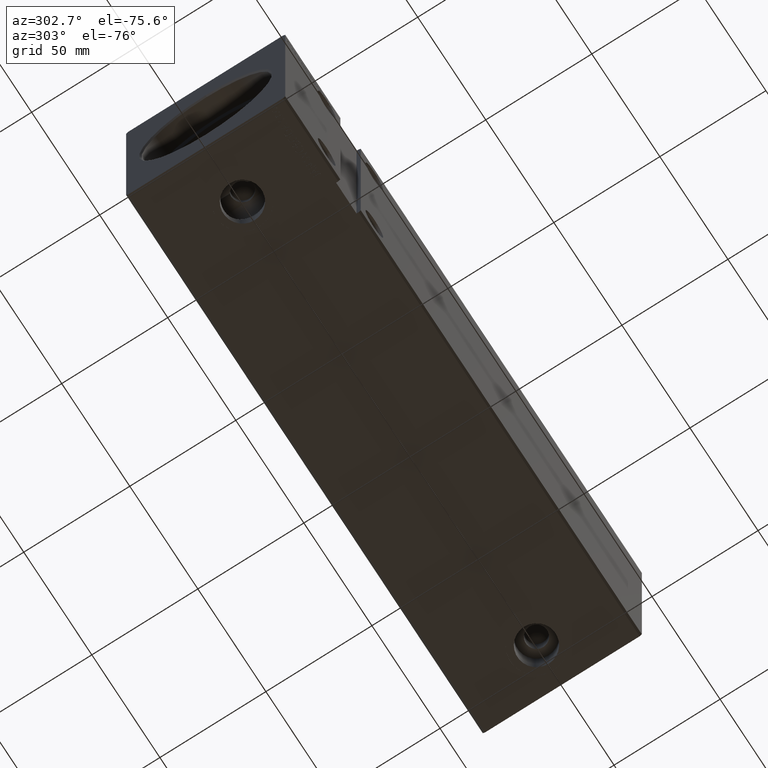
[diagram: clean part render]
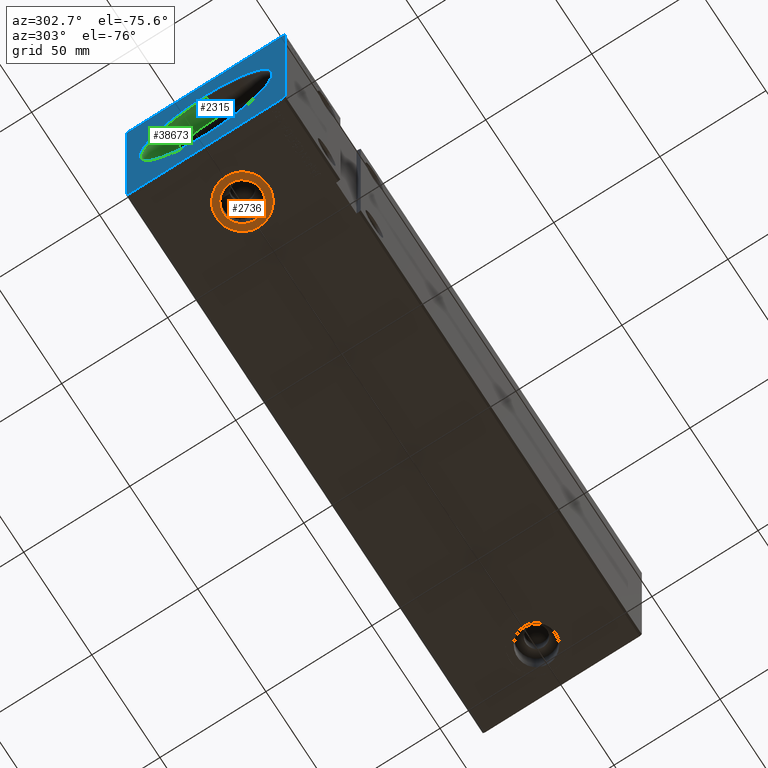
[diagram: same view with three faces highlighted in distinct colors, each labeled with its STEP entity id]
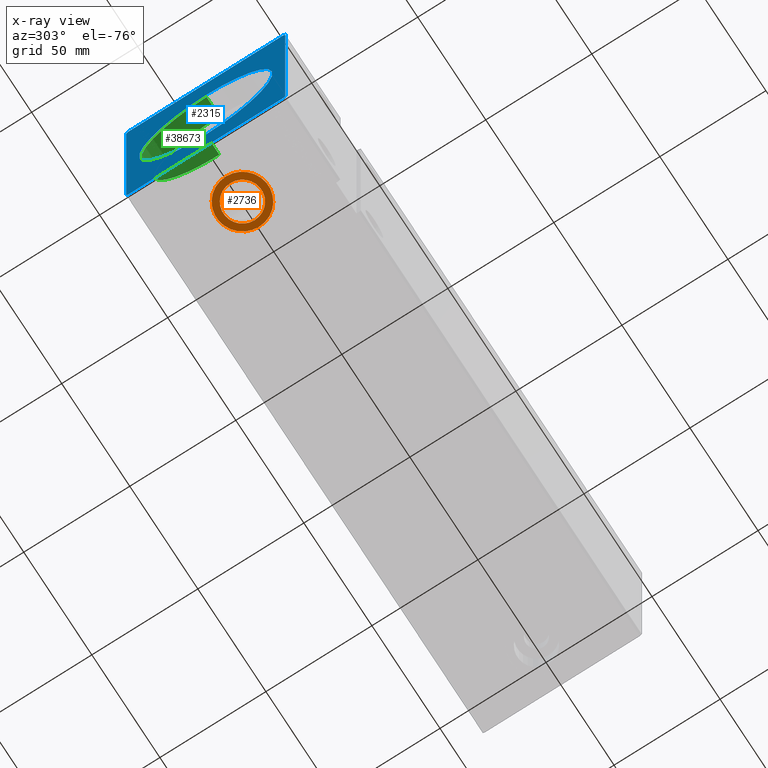
[diagram: x-ray of the same camera — body ghosted, the three highlighted faces saturated]
A machine part, auxiliary view with three faces highlighted in distinct colors.
The next image is the same camera in x-ray (body ghosted, the three faces saturated) — at least one of them is partly hidden behind the body in this view.
Their STEP definitions:

[orange] entity #2736 — the highlighted planar face has unit normal (0, 0, -1).
#1065 = CARTESIAN_POINT ( 'NONE',  ( 39.25000000000000000, -4.635008494449654964E-15, -49.89999999999999858 ) ) ;
#2736 = ADVANCED_FACE ( 'NONE', ( #33561, #15109 ), #11367, .T. ) ;
#3351 = EDGE_CURVE ( 'NONE', #10190, #8006, #16650, .T. ) ;
#3371 = DIRECTION ( 'NONE',  ( 0.000000000000000000, 0.000000000000000000, -1.000000000000000000 ) ) ;
#6008 = ORIENTED_EDGE ( 'NONE', *, *, #7393, .T. ) ;
#7393 = EDGE_CURVE ( 'NONE', #26166, #23701, #29960, .T. ) ;
#8006 = VERTEX_POINT ( 'NONE', #24031 ) ;
#10190 = VERTEX_POINT ( 'NONE', #36554 ) ;
#10990 = CARTESIAN_POINT ( 'NONE',  ( 14.75000000000000000, -6.135200823405162107E-15, -49.89999999999999858 ) ) ;
#11367 = PLANE ( 'NONE',  #23257 ) ;
#12003 = AXIS2_PLACEMENT_3D ( 'NONE', #16847, #3371, #38399 ) ;
#12769 = AXIS2_PLACEMENT_3D ( 'NONE', #22543, #26284, #35002 ) ;
#14102 = AXIS2_PLACEMENT_3D ( 'NONE', #23912, #23513, #23717 ) ;
#15109 = FACE_OUTER_BOUND ( 'NONE', #15914, .T. ) ;
#15914 = EDGE_LOOP ( 'NONE', ( #6008, #26540 ) ) ;
#16650 = CIRCLE ( 'NONE', #12003, 8.999999999999998224 ) ;
#16847 = CARTESIAN_POINT ( 'NONE',  ( 27.00000000000000000, -6.135200823405162107E-15, -49.89999999999999858 ) ) ;
#21113 = CARTESIAN_POINT ( 'NONE',  ( 0.000000000000000000, 0.000000000000000000, -49.89999999999999858 ) ) ;
#22267 = EDGE_CURVE ( 'NONE', #23701, #26166, #25676, .T. ) ;
#22309 = DIRECTION ( 'NONE',  ( 0.000000000000000000, 0.000000000000000000, -1.000000000000000000 ) ) ;
#22543 = CARTESIAN_POINT ( 'NONE',  ( 27.00000000000000000, -6.135200823405162107E-15, -49.89999999999999858 ) ) ;
#23257 = AXIS2_PLACEMENT_3D ( 'NONE', #21113, #33763, #36665 ) ;
#23513 = DIRECTION ( 'NONE',  ( 0.000000000000000000, 0.000000000000000000, -1.000000000000000000 ) ) ;
#23701 = VERTEX_POINT ( 'NONE', #1065 ) ;
#23717 = DIRECTION ( 'NONE',  ( -1.000000000000000000, 0.000000000000000000, 0.000000000000000000 ) ) ;
#23912 = CARTESIAN_POINT ( 'NONE',  ( 27.00000000000000000, -6.135200823405162107E-15, -49.89999999999999858 ) ) ;
#24031 = CARTESIAN_POINT ( 'NONE',  ( 36.00000000000000000, -5.033018704172544196E-15, -49.89999999999999858 ) ) ;
#25623 = DIRECTION ( 'NONE',  ( -1.000000000000000000, 0.000000000000000000, 0.000000000000000000 ) ) ;
#25676 = CIRCLE ( 'NONE', #27672, 12.25000000000000000 ) ;
#26166 = VERTEX_POINT ( 'NONE', #10990 ) ;
#26284 = DIRECTION ( 'NONE',  ( 0.000000000000000000, 0.000000000000000000, -1.000000000000000000 ) ) ;
#26540 = ORIENTED_EDGE ( 'NONE', *, *, #22267, .T. ) ;
#27672 = AXIS2_PLACEMENT_3D ( 'NONE', #34552, #22309, #25623 ) ;
#28852 = EDGE_CURVE ( 'NONE', #8006, #10190, #38573, .T. ) ;
#29960 = CIRCLE ( 'NONE', #12769, 12.25000000000000000 ) ;
#33561 = FACE_BOUND ( 'NONE', #33913, .T. ) ;
#33763 = DIRECTION ( 'NONE',  ( 0.000000000000000000, 0.000000000000000000, -1.000000000000000000 ) ) ;
#33913 = EDGE_LOOP ( 'NONE', ( #39709, #37603 ) ) ;
#34552 = CARTESIAN_POINT ( 'NONE',  ( 27.00000000000000000, -6.135200823405162107E-15, -49.89999999999999858 ) ) ;
#35002 = DIRECTION ( 'NONE',  ( -1.000000000000000000, 0.000000000000000000, 0.000000000000000000 ) ) ;
#36554 = CARTESIAN_POINT ( 'NONE',  ( 18.00000000000000355, -6.135200823405162107E-15, -49.89999999999999858 ) ) ;
#36665 = DIRECTION ( 'NONE',  ( -1.000000000000000000, 0.000000000000000000, -0.000000000000000000 ) ) ;
#37603 = ORIENTED_EDGE ( 'NONE', *, *, #28852, .F. ) ;
#38399 = DIRECTION ( 'NONE',  ( -1.000000000000000000, 0.000000000000000000, 0.000000000000000000 ) ) ;
#38573 = CIRCLE ( 'NONE', #14102, 8.999999999999998224 ) ;
#39709 = ORIENTED_EDGE ( 'NONE', *, *, #3351, .F. ) ;

[blue] entity #2315 — the highlighted planar face has unit normal (1, 0, 0).
#360 = VERTEX_POINT ( 'NONE', #7497 ) ;
#1276 = ORIENTED_EDGE ( 'NONE', *, *, #17891, .F. ) ;
#1711 = VECTOR ( 'NONE', #17926, 1000.000000000000114 ) ;
#1743 = EDGE_LOOP ( 'NONE', ( #21658, #35752 ) ) ;
#2315 = ADVANCED_FACE ( 'NONE', ( #13775, #13973 ), #33656, .F. ) ;
#2363 = ORIENTED_EDGE ( 'NONE', *, *, #34882, .F. ) ;
#5112 = VERTEX_POINT ( 'NONE', #40467 ) ;
#5678 = EDGE_CURVE ( 'NONE', #18774, #29336, #22636, .T. ) ;
#5729 = CARTESIAN_POINT ( 'NONE',  ( 0.000000000000000000, 36.50000000000000711, 50.00000000000000000 ) ) ;
#6336 = LINE ( 'NONE', #5729, #27448 ) ;
#7497 = CARTESIAN_POINT ( 'NONE',  ( 0.000000000000000000, 36.50000000000000711, 50.00000000000000000 ) ) ;
#7917 = LINE ( 'NONE', #26579, #26143 ) ;
#8129 = DIRECTION ( 'NONE',  ( 0.000000000000000000, 0.7071067811865474617, 0.7071067811865474617 ) ) ;
#9077 = EDGE_CURVE ( 'NONE', #39927, #19424, #27253, .T. ) ;
#9519 = VECTOR ( 'NONE', #36312, 1000.000000000000114 ) ;
#10936 = EDGE_CURVE ( 'NONE', #35120, #27355, #17292, .T. ) ;
#11260 = CARTESIAN_POINT ( 'NONE',  ( 0.000000000000000000, 0.000000000000000000, 0.000000000000000000 ) ) ;
#11847 = CARTESIAN_POINT ( 'NONE',  ( 0.000000000000000000, 0.000000000000000000, 0.000000000000000000 ) ) ;
#12383 = CARTESIAN_POINT ( 'NONE',  ( 0.000000000000000000, 0.000000000000000000, 0.000000000000000000 ) ) ;
#12676 = AXIS2_PLACEMENT_3D ( 'NONE', #11260, #26816, #26406 ) ;
#13443 = VECTOR ( 'NONE', #36798, 1000.000000000000000 ) ;
#13539 = DIRECTION ( 'NONE',  ( 0.000000000000000000, 1.000000000000000000, 0.000000000000000000 ) ) ;
#13642 = CIRCLE ( 'NONE', #19614, 31.45000000000000639 ) ;
#13775 = FACE_BOUND ( 'NONE', #1743, .T. ) ;
#13973 = FACE_OUTER_BOUND ( 'NONE', #27407, .T. ) ;
#14346 = DIRECTION ( 'NONE',  ( 1.000000000000000000, 0.000000000000000000, 0.000000000000000000 ) ) ;
#14553 = CARTESIAN_POINT ( 'NONE',  ( 0.000000000000000000, 37.50000000000000711, -49.00000000000000000 ) ) ;
#15519 = ORIENTED_EDGE ( 'NONE', *, *, #10936, .F. ) ;
#15588 = ORIENTED_EDGE ( 'NONE', *, *, #32046, .F. ) ;
#15873 = DIRECTION ( 'NONE',  ( 0.000000000000000000, -1.000000000000000000, -1.901066822988281457E-16 ) ) ;
#16920 = EDGE_CURVE ( 'NONE', #20592, #35120, #17520, .T. ) ;
#17292 = LINE ( 'NONE', #19585, #40616 ) ;
#17474 = LINE ( 'NONE', #26999, #28241 ) ;
#17517 = VERTEX_POINT ( 'NONE', #26435 ) ;
#17520 = LINE ( 'NONE', #23923, #1711 ) ;
#17891 = EDGE_CURVE ( 'NONE', #17517, #39927, #17474, .T. ) ;
#17926 = DIRECTION ( 'NONE',  ( 0.000000000000000000, -0.7071067811865474617, -0.7071067811865474617 ) ) ;
#18399 = DIRECTION ( 'NONE',  ( 0.000000000000000000, 0.000000000000000000, -1.000000000000000000 ) ) ;
#18770 = CARTESIAN_POINT ( 'NONE',  ( 0.000000000000000000, 37.50000000000000711, 49.00000000000000000 ) ) ;
#18774 = VERTEX_POINT ( 'NONE', #19626 ) ;
#18828 = CARTESIAN_POINT ( 'NONE',  ( 0.000000000000000000, -37.50000000000001421, -49.00000000000000000 ) ) ;
#19424 = VERTEX_POINT ( 'NONE', #18770 ) ;
#19486 = LINE ( 'NONE', #31533, #22681 ) ;
#19585 = CARTESIAN_POINT ( 'NONE',  ( 0.000000000000000000, -37.50000000000001421, 48.99999999999998579 ) ) ;
#19614 = AXIS2_PLACEMENT_3D ( 'NONE', #11847, #14346, #20972 ) ;
#19626 = CARTESIAN_POINT ( 'NONE',  ( 0.000000000000000000, 3.851514183318426405E-15, -31.45000000000000639 ) ) ;
#20592 = VERTEX_POINT ( 'NONE', #21075 ) ;
#20613 = CARTESIAN_POINT ( 'NONE',  ( 0.000000000000000000, -37.50000000000001421, 48.99999999999998579 ) ) ;
#20972 = DIRECTION ( 'NONE',  ( 0.000000000000000000, 0.000000000000000000, -1.000000000000000000 ) ) ;
#21075 = CARTESIAN_POINT ( 'NONE',  ( 0.000000000000000000, -36.50000000000001421, 49.99999999999998579 ) ) ;
#21658 = ORIENTED_EDGE ( 'NONE', *, *, #39318, .T. ) ;
#22636 = CIRCLE ( 'NONE', #36560, 31.45000000000000639 ) ;
#22681 = VECTOR ( 'NONE', #28825, 1000.000000000000114 ) ;
#23038 = CARTESIAN_POINT ( 'NONE',  ( 0.000000000000000000, -37.50000000000001421, -49.00000000000000000 ) ) ;
#23652 = LINE ( 'NONE', #23038, #9519 ) ;
#23923 = CARTESIAN_POINT ( 'NONE',  ( 0.000000000000000000, -36.50000000000001421, 49.99999999999998579 ) ) ;
#25016 = DIRECTION ( 'NONE',  ( 1.000000000000000000, 0.000000000000000000, 0.000000000000000000 ) ) ;
#26143 = VECTOR ( 'NONE', #13539, 1000.000000000000000 ) ;
#26406 = DIRECTION ( 'NONE',  ( 0.000000000000000000, 0.000000000000000000, -1.000000000000000000 ) ) ;
#26435 = CARTESIAN_POINT ( 'NONE',  ( 0.000000000000000000, 36.50000000000000711, -50.00000000000000000 ) ) ;
#26579 = CARTESIAN_POINT ( 'NONE',  ( 0.000000000000000000, -36.50000000000000711, -50.00000000000000000 ) ) ;
#26816 = DIRECTION ( 'NONE',  ( 1.000000000000000000, 0.000000000000000000, 0.000000000000000000 ) ) ;
#26999 = CARTESIAN_POINT ( 'NONE',  ( 0.000000000000000000, 36.50000000000000711, -50.00000000000000000 ) ) ;
#27253 = LINE ( 'NONE', #30170, #13443 ) ;
#27355 = VERTEX_POINT ( 'NONE', #18828 ) ;
#27407 = EDGE_LOOP ( 'NONE', ( #29043, #38450, #1276, #28340, #15588, #15519, #38502, #2363 ) ) ;
#27448 = VECTOR ( 'NONE', #15873, 1000.000000000000000 ) ;
#28241 = VECTOR ( 'NONE', #8129, 1000.000000000000114 ) ;
#28340 = ORIENTED_EDGE ( 'NONE', *, *, #39822, .F. ) ;
#28825 = DIRECTION ( 'NONE',  ( 0.000000000000000000, -0.7071067811865474617, 0.7071067811865474617 ) ) ;
#29043 = ORIENTED_EDGE ( 'NONE', *, *, #29392, .F. ) ;
#29336 = VERTEX_POINT ( 'NONE', #39829 ) ;
#29392 = EDGE_CURVE ( 'NONE', #19424, #360, #19486, .T. ) ;
#30170 = CARTESIAN_POINT ( 'NONE',  ( 0.000000000000000000, 37.50000000000000711, -49.00000000000000000 ) ) ;
#31533 = CARTESIAN_POINT ( 'NONE',  ( 0.000000000000000000, 37.50000000000000711, 49.00000000000000000 ) ) ;
#32046 = EDGE_CURVE ( 'NONE', #27355, #5112, #23652, .T. ) ;
#32235 = DIRECTION ( 'NONE',  ( 0.000000000000000000, 0.000000000000000000, -1.000000000000000000 ) ) ;
#33656 = PLANE ( 'NONE',  #12676 ) ;
#34882 = EDGE_CURVE ( 'NONE', #360, #20592, #6336, .T. ) ;
#35120 = VERTEX_POINT ( 'NONE', #20613 ) ;
#35752 = ORIENTED_EDGE ( 'NONE', *, *, #5678, .T. ) ;
#36312 = DIRECTION ( 'NONE',  ( 0.000000000000000000, 0.7071067811865500152, -0.7071067811865451302 ) ) ;
#36560 = AXIS2_PLACEMENT_3D ( 'NONE', #12383, #25016, #18399 ) ;
#36798 = DIRECTION ( 'NONE',  ( 0.000000000000000000, 0.000000000000000000, 1.000000000000000000 ) ) ;
#38450 = ORIENTED_EDGE ( 'NONE', *, *, #9077, .F. ) ;
#38502 = ORIENTED_EDGE ( 'NONE', *, *, #16920, .F. ) ;
#39318 = EDGE_CURVE ( 'NONE', #29336, #18774, #13642, .T. ) ;
#39822 = EDGE_CURVE ( 'NONE', #5112, #17517, #7917, .T. ) ;
#39829 = CARTESIAN_POINT ( 'NONE',  ( 0.000000000000000000, 0.000000000000000000, 31.45000000000000639 ) ) ;
#39927 = VERTEX_POINT ( 'NONE', #14553 ) ;
#40467 = CARTESIAN_POINT ( 'NONE',  ( 0.000000000000000000, -36.50000000000000711, -50.00000000000000000 ) ) ;
#40616 = VECTOR ( 'NONE', #32235, 1000.000000000000000 ) ;

[green] entity #38673 — the highlighted cylindrical surface (partial cylindrical patch) has radius 30.75 mm, axis along (-1, -0, -0).
#129 = CARTESIAN_POINT ( 'NONE',  ( 10.00000000000000000, 3.765788907378111328E-15, -30.75000000000000355 ) ) ;
#1590 = CYLINDRICAL_SURFACE ( 'NONE', #36805, 30.75000000000000355 ) ;
#5289 = DIRECTION ( 'NONE',  ( 0.000000000000000000, 0.000000000000000000, -1.000000000000000000 ) ) ;
#5531 = LINE ( 'NONE', #6146, #23512 ) ;
#5795 = EDGE_CURVE ( 'NONE', #31825, #33759, #39044, .T. ) ;
#6146 = CARTESIAN_POINT ( 'NONE',  ( 10.00000000000000000, 3.765788907378111328E-15, -30.75000000000000355 ) ) ;
#7556 = AXIS2_PLACEMENT_3D ( 'NONE', #24108, #40082, #36563 ) ;
#8324 = VERTEX_POINT ( 'NONE', #129 ) ;
#8436 = DIRECTION ( 'NONE',  ( -1.000000000000000000, -0.000000000000000000, -0.000000000000000000 ) ) ;
#9028 = EDGE_CURVE ( 'NONE', #33759, #34562, #18094, .T. ) ;
#11082 = EDGE_CURVE ( 'NONE', #31825, #8324, #12175, .T. ) ;
#11502 = DIRECTION ( 'NONE',  ( -1.000000000000000000, 0.000000000000000000, 0.000000000000000000 ) ) ;
#11997 = ORIENTED_EDGE ( 'NONE', *, *, #5795, .T. ) ;
#12175 = CIRCLE ( 'NONE', #7556, 30.75000000000000355 ) ;
#12799 = CARTESIAN_POINT ( 'NONE',  ( 0.6999999999999957367, 0.000000000000000000, 30.75000000000000355 ) ) ;
#13835 = CARTESIAN_POINT ( 'NONE',  ( 0.6999999999999957367, 3.765788907378111328E-15, -30.75000000000000355 ) ) ;
#14455 = DIRECTION ( 'NONE',  ( -1.000000000000000000, -0.000000000000000000, -0.000000000000000000 ) ) ;
#16464 = CARTESIAN_POINT ( 'NONE',  ( 10.00000000000000000, 0.000000000000000000, 30.75000000000000355 ) ) ;
#18094 = CIRCLE ( 'NONE', #24682, 30.75000000000000355 ) ;
#20870 = DIRECTION ( 'NONE',  ( 0.000000000000000000, 0.000000000000000000, 1.000000000000000000 ) ) ;
#23483 = DIRECTION ( 'NONE',  ( -1.000000000000000000, -0.000000000000000000, -0.000000000000000000 ) ) ;
#23512 = VECTOR ( 'NONE', #8436, 1000.000000000000000 ) ;
#23568 = FACE_OUTER_BOUND ( 'NONE', #29171, .T. ) ;
#24108 = CARTESIAN_POINT ( 'NONE',  ( 10.00000000000000000, 0.000000000000000000, 0.000000000000000000 ) ) ;
#24682 = AXIS2_PLACEMENT_3D ( 'NONE', #29967, #11502, #5289 ) ;
#26609 = VECTOR ( 'NONE', #23483, 1000.000000000000000 ) ;
#26677 = CARTESIAN_POINT ( 'NONE',  ( 10.00000000000000000, 0.000000000000000000, 0.000000000000000000 ) ) ;
#28518 = ORIENTED_EDGE ( 'NONE', *, *, #11082, .F. ) ;
#29171 = EDGE_LOOP ( 'NONE', ( #39617, #28518, #11997, #40038 ) ) ;
#29967 = CARTESIAN_POINT ( 'NONE',  ( 0.6999999999999957367, 0.000000000000000000, 0.000000000000000000 ) ) ;
#31825 = VERTEX_POINT ( 'NONE', #33863 ) ;
#33759 = VERTEX_POINT ( 'NONE', #12799 ) ;
#33863 = CARTESIAN_POINT ( 'NONE',  ( 10.00000000000000000, 0.000000000000000000, 30.75000000000000355 ) ) ;
#34562 = VERTEX_POINT ( 'NONE', #13835 ) ;
#35801 = EDGE_CURVE ( 'NONE', #8324, #34562, #5531, .T. ) ;
#36563 = DIRECTION ( 'NONE',  ( 0.000000000000000000, 0.000000000000000000, 1.000000000000000000 ) ) ;
#36805 = AXIS2_PLACEMENT_3D ( 'NONE', #26677, #14455, #20870 ) ;
#38673 = ADVANCED_FACE ( 'NONE', ( #23568 ), #1590, .F. ) ;
#39044 = LINE ( 'NONE', #16464, #26609 ) ;
#39617 = ORIENTED_EDGE ( 'NONE', *, *, #35801, .F. ) ;
#40038 = ORIENTED_EDGE ( 'NONE', *, *, #9028, .T. ) ;
#40082 = DIRECTION ( 'NONE',  ( -1.000000000000000000, 0.000000000000000000, 0.000000000000000000 ) ) ;